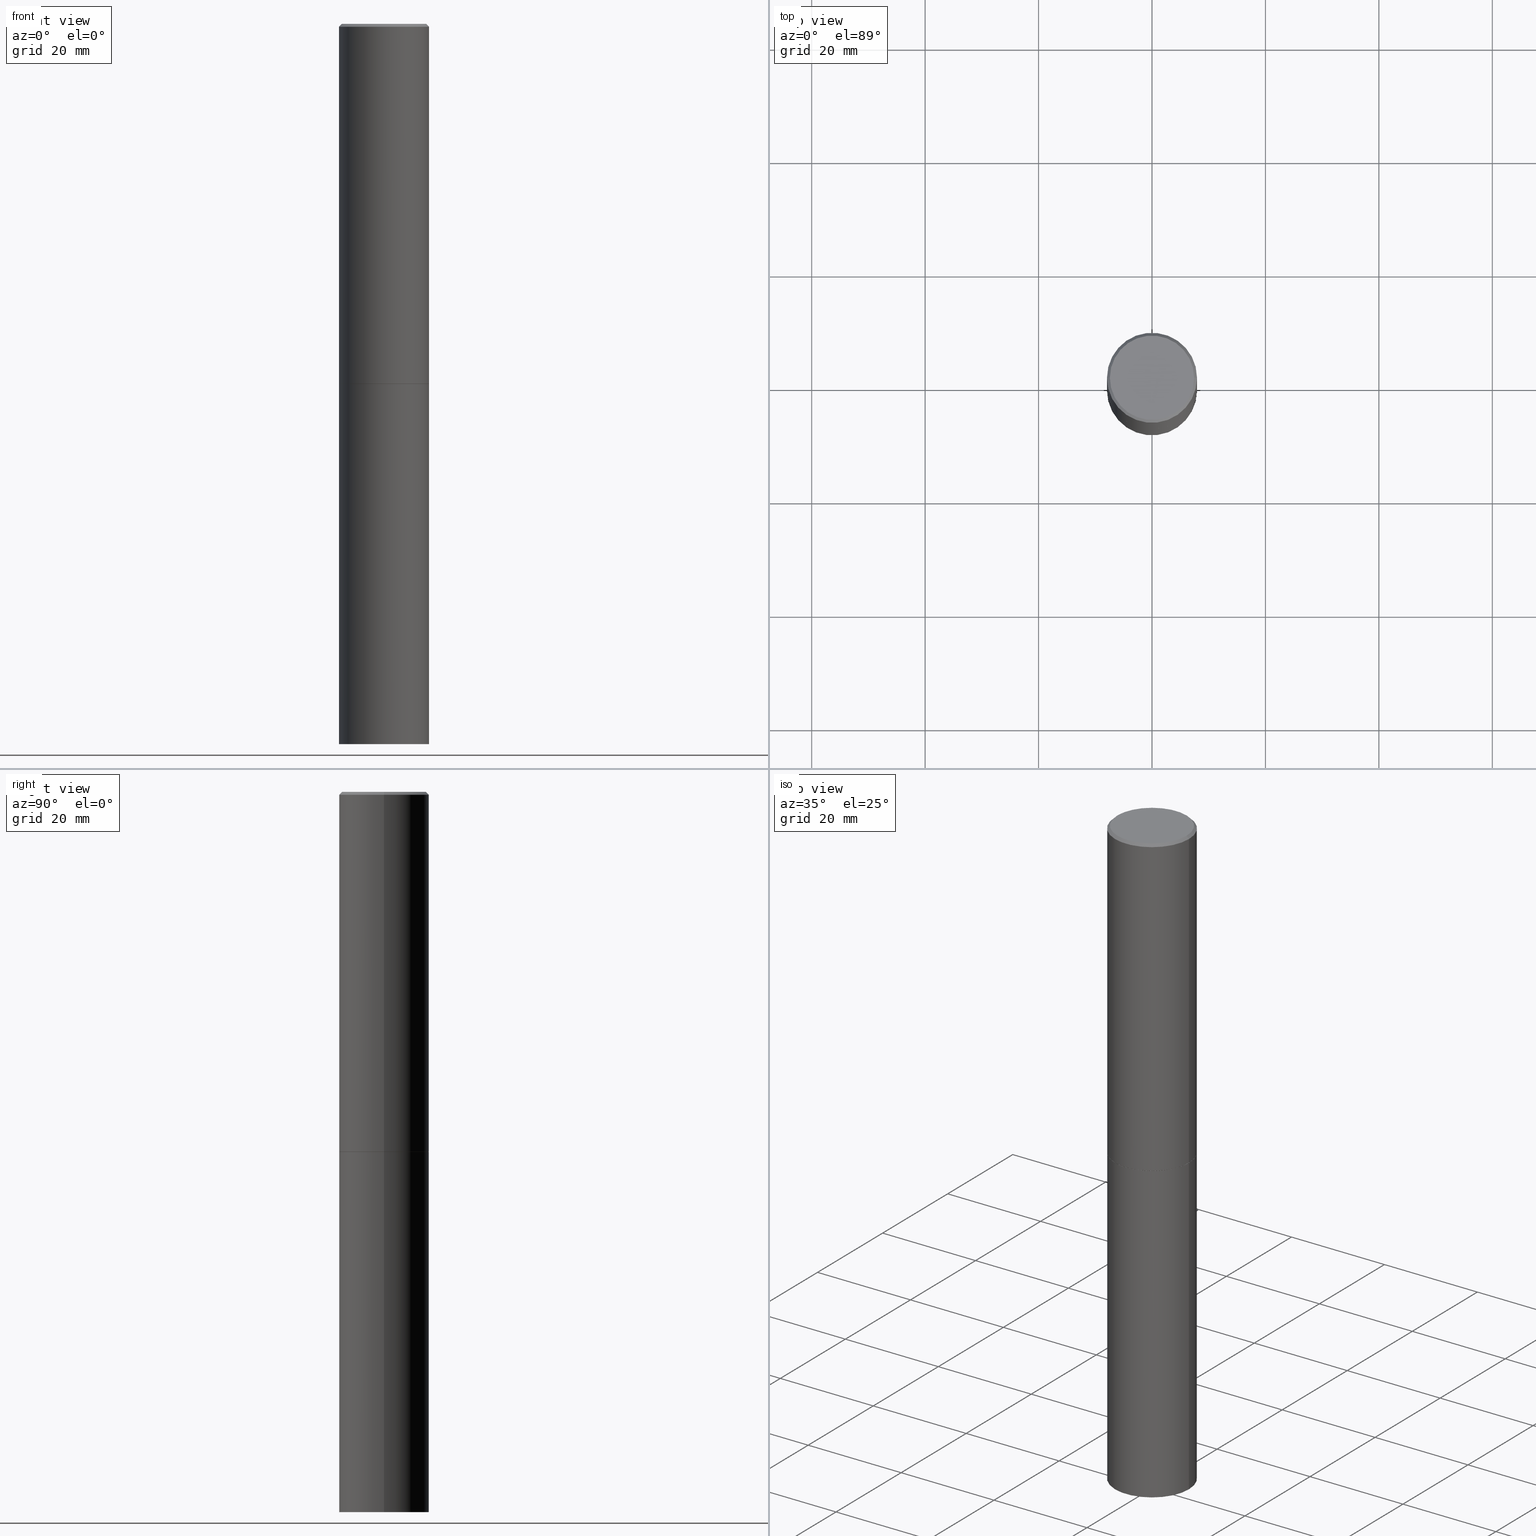
[diagram: canonical four-view strip — front | top / right | iso, engineering-drawing reading convention]
A machine part, canonical four-view strip (front | top / right | iso — engineering-drawing reading convention). The complete STEP part file that produces these views, byte-faithful:
ISO-10303-21;
HEADER;
FILE_DESCRIPTION (( 'STEP AP203' ),
    '1' );
FILE_NAME ('34745.STEP',
    '2024-02-27T17:29:21',
    ( '' ),
    ( '' ),
    'SwSTEP 2.0',
    'SolidWorks 2023',
    '' );
FILE_SCHEMA (( 'CONFIG_CONTROL_DESIGN' ));
ENDSEC;

DATA;
#1 = CYLINDRICAL_SURFACE ( 'NONE', #303, 0.3124999999999998890 ) ;
#2 = ORIENTED_EDGE ( 'NONE', *, *, #57, .T. ) ;
#3 = VECTOR ( 'NONE', #358, 39.37007874015748143 ) ;
#4 = PERSON_AND_ORGANIZATION ( #226, #138 ) ;
#5 = ORIENTED_EDGE ( 'NONE', *, *, #34, .F. ) ;
#6 = CC_DESIGN_PERSON_AND_ORGANIZATION_ASSIGNMENT ( #152, #31, ( #104 ) ) ;
#7 = ORIENTED_EDGE ( 'NONE', *, *, #294, .F. ) ;
#8 = ORIENTED_EDGE ( 'NONE', *, *, #356, .T. ) ;
#9 = CLOSED_SHELL ( 'NONE', ( #45, #328, #183, #143, #84, #77, #67, #284 ) ) ;
#10 = FACE_OUTER_BOUND ( 'NONE', #261, .T. ) ;
#11 = PRODUCT_DEFINITION_SHAPE ( 'NONE', 'NONE',  #258 ) ;
#12 = CALENDAR_DATE ( 2024, 27, 2 ) ;
#13 = CARTESIAN_POINT ( 'NONE',  ( -0.3114999999999999991, -6.510064270866932046E-15, -2.500000000000000000 ) ) ;
#14 = CARTESIAN_POINT ( 'NONE',  ( 0.3125000000000000000, -1.090738770254598186E-14, -2.499000000000000998 ) ) ;
#15 = ADVANCED_FACE ( 'NONE', ( #10 ), #288, .T. ) ;
#16 = CONICAL_SURFACE ( 'NONE', #180, 0.3124999999999997224, 0.7853981633974468357 ) ;
#17 = AXIS2_PLACEMENT_3D ( 'NONE', #307, #142, #252 ) ;
#18 = DIRECTION ( 'NONE',  ( -2.445468806185136597E-29, 3.491481338843145583E-15, 1.000000000000000000 ) ) ;
#19 = DIRECTION ( 'NONE',  ( 1.000000000000000000, -6.982962677686266711E-15, 4.876176775795936353E-29 ) ) ;
#20 = DIRECTION ( 'NONE',  ( 2.445468806185136597E-29, -3.491481338843145583E-15, -1.000000000000000000 ) ) ;
#21 = CARTESIAN_POINT ( 'NONE',  ( 4.890937612370284544E-31, -6.982962677686307633E-17, -0.02000000000000004552 ) ) ;
#22 = DIRECTION ( 'NONE',  ( 0.7071067811868130271, -2.468850131085038979E-15, 0.7071067811862817853 ) ) ;
#23 = DIRECTION ( 'NONE',  ( 2.438088387897960049E-29, -3.491481338843145188E-15, -1.000000000000000000 ) ) ;
#24 = DIRECTION ( 'NONE',  ( -1.000000000000000000, 6.982962677686266711E-15, 0.000000000000000000 ) ) ;
#25 = COORDINATED_UNIVERSAL_TIME_OFFSET ( 5, 0, .BEHIND. ) ;
#26 = FACE_OUTER_BOUND ( 'NONE', #68, .T. ) ;
#27 = ORIENTED_EDGE ( 'NONE', *, *, #125, .F. ) ;
#28 = ORIENTED_EDGE ( 'NONE', *, *, #338, .T. ) ;
#29 = AXIS2_PLACEMENT_3D ( 'NONE', #202, #172, #313 ) ;
#30 = CC_DESIGN_APPROVAL ( #193, ( #258 ) ) ;
#31 = PERSON_AND_ORGANIZATION_ROLE ( 'design_supplier' ) ;
#32 =( NAMED_UNIT ( * ) PLANE_ANGLE_UNIT ( ) SI_UNIT ( $, .RADIAN. ) );
#33 = EDGE_LOOP ( 'NONE', ( #95, #265 ) ) ;
#34 = EDGE_CURVE ( 'NONE', #295, #271, #305, .T. ) ;
#35 = ORIENTED_EDGE ( 'NONE', *, *, #248, .F. ) ;
#36 = APPROVAL ( #210, 'UNSPECIFIED' ) ;
#37 = ORIENTED_EDGE ( 'NONE', *, *, #125, .T. ) ;
#38 = FACE_OUTER_BOUND ( 'NONE', #51, .T. ) ;
#39 = EDGE_CURVE ( 'NONE', #197, #150, #91, .T. ) ;
#40 = PLANE ( 'NONE',  #170 ) ;
#41 = PLANE ( 'NONE',  #325 ) ;
#42 = CLOSED_SHELL ( 'NONE', ( #15, #317, #118, #112 ) ) ;
#43 = DIRECTION ( 'NONE',  ( 1.000000000000000000, -6.982962677686265133E-15, 0.000000000000000000 ) ) ;
#44 = MANIFOLD_SOLID_BREP ( 'Body-Move/Copy2[2]', #9 ) ;
#45 = ADVANCED_FACE ( 'NONE', ( #38 ), #115, .T. ) ;
#46 = FACE_OUTER_BOUND ( 'NONE', #206, .T. ) ;
#47 = ADVANCED_BREP_SHAPE_REPRESENTATION ( '34745', ( #168, #44, #234 ), #158 ) ;
#48 = DATE_AND_TIME ( #189, #80 ) ;
#49 = CARTESIAN_POINT ( 'NONE',  ( 4.890937612370284544E-31, -6.982962677686307633E-17, -0.02000000000000004552 ) ) ;
#50 = CARTESIAN_POINT ( 'NONE',  ( -0.3125000000000000000, -1.087260897141148433E-14, -2.500000000000000000 ) ) ;
#51 = EDGE_LOOP ( 'NONE', ( #235, #2, #350, #7 ) ) ;
#52 = DIRECTION ( 'NONE',  ( -1.000000000000000000, 6.982962677686265922E-15, -4.876176775795935793E-29 ) ) ;
#53 = EDGE_CURVE ( 'NONE', #240, #271, #103, .T. ) ;
#54 = CALENDAR_DATE ( 2024, 27, 2 ) ;
#55 = CARTESIAN_POINT ( 'NONE',  ( -0.3125000000000000000, -2.177074697022629142E-15, -2.499000000000000998 ) ) ;
#56 = CARTESIAN_POINT ( 'NONE',  ( -0.2924999999999997602, 2.077431396611662216E-15, 4.268512490086005323E-18 ) ) ;
#57 = EDGE_CURVE ( 'NONE', #61, #211, #162, .T. ) ;
#58 =( NAMED_UNIT ( * ) SI_UNIT ( $, .STERADIAN. ) SOLID_ANGLE_UNIT ( ) );
#59 = ORIENTED_EDGE ( 'NONE', *, *, #89, .T. ) ;
#60 = PRODUCT_RELATED_PRODUCT_CATEGORY ( 'detail', '', ( #153 ) ) ;
#61 = VERTEX_POINT ( 'NONE', #13 ) ;
#62 = MECHANICAL_CONTEXT ( 'NONE', #161, 'mechanical' ) ;
#63 = PERSON_AND_ORGANIZATION_ROLE ( 'classification_officer' ) ;
#64 = ORIENTED_EDGE ( 'NONE', *, *, #57, .F. ) ;
#65 = CIRCLE ( 'NONE', #17, 0.3125000000000000000 ) ;
#66 = ORIENTED_EDGE ( 'NONE', *, *, #216, .F. ) ;
#67 = ADVANCED_FACE ( 'NONE', ( #46 ), #41, .F. ) ;
#68 = EDGE_LOOP ( 'NONE', ( #99, #209 ) ) ;
#69 = CARTESIAN_POINT ( 'NONE',  ( 6.111226546656659252E-29, -8.725211865769023513E-15, -2.499000000000000998 ) ) ;
#70 = EDGE_CURVE ( 'NONE', #128, #211, #275, .T. ) ;
#71 = VECTOR ( 'NONE', #272, 39.37007874015748854 ) ;
#72 = APPROVAL_PERSON_ORGANIZATION ( #296, #36, #213 ) ;
#73 = DIRECTION ( 'NONE',  ( -2.445468806185136877E-29, 3.491481338843145188E-15, 1.000000000000000000 ) ) ;
#74 = DIRECTION ( 'NONE',  ( 1.000000000000000000, -6.982962677686269077E-15, 0.000000000000000000 ) ) ;
#75 = COORDINATED_UNIVERSAL_TIME_OFFSET ( 5, 0, .BEHIND. ) ;
#76 = DIRECTION ( 'NONE',  ( -2.438088387897960049E-29, 3.491481338843145188E-15, 1.000000000000000000 ) ) ;
#77 = ADVANCED_FACE ( 'NONE', ( #81 ), #221, .T. ) ;
#78 = AXIS2_PLACEMENT_3D ( 'NONE', #340, #308, #201 ) ;
#79 = DESIGN_CONTEXT ( 'detailed design', #304, 'design' ) ;
#80 = LOCAL_TIME ( 12, 29, 21.00000000000000000, #75 ) ;
#81 = FACE_OUTER_BOUND ( 'NONE', #237, .T. ) ;
#82 = DIRECTION ( 'NONE',  ( 1.000000000000000000, -6.982962677686266711E-15, 4.876176775795935232E-29 ) ) ;
#83 = DIRECTION ( 'NONE',  ( 1.000000000000000000, -6.982962677686265133E-15, 0.000000000000000000 ) ) ;
#84 = ADVANCED_FACE ( 'NONE', ( #192 ), #134, .T. ) ;
#85 = DIRECTION ( 'NONE',  ( -2.445468806185136597E-29, 3.491481338843145583E-15, 1.000000000000000000 ) ) ;
#86 = AXIS2_PLACEMENT_3D ( 'NONE', #69, #18, #43 ) ;
#87 = APPROVAL_ROLE ( '' ) ;
#88 = DIRECTION ( 'NONE',  ( -2.445468806185136877E-29, 3.491481338843145188E-15, 1.000000000000000000 ) ) ;
#89 = EDGE_CURVE ( 'NONE', #295, #264, #337, .T. ) ;
#90 = APPROVAL_DATE_TIME ( #341, #268 ) ;
#91 = CIRCLE ( 'NONE', #233, 0.3124999999999997224 ) ;
#92 = CC_DESIGN_PERSON_AND_ORGANIZATION_ASSIGNMENT ( #4, #311, ( #258 ) ) ;
#93 =( CONVERSION_BASED_UNIT ( 'INCH', #348 ) LENGTH_UNIT ( ) NAMED_UNIT ( #324 ) );
#94 = ORIENTED_EDGE ( 'NONE', *, *, #253, .F. ) ;
#95 = ORIENTED_EDGE ( 'NONE', *, *, #216, .T. ) ;
#96 = DATE_TIME_ROLE ( 'classification_date' ) ;
#97 = ORIENTED_EDGE ( 'NONE', *, *, #70, .T. ) ;
#98 = LOCAL_TIME ( 12, 29, 21.00000000000000000, #179 ) ;
#99 = ORIENTED_EDGE ( 'NONE', *, *, #349, .F. ) ;
#100 = ORIENTED_EDGE ( 'NONE', *, *, #344, .F. ) ;
#101 = CALENDAR_DATE ( 2024, 27, 2 ) ;
#102 = LINE ( 'NONE', #327, #364 ) ;
#103 = CIRCLE ( 'NONE', #342, 0.3125000000000000000 ) ;
#104 = PRODUCT_DEFINITION_FORMATION_WITH_SPECIFIED_SOURCE ( 'ANY', '', #153, .NOT_KNOWN. ) ;
#105 = FACE_OUTER_BOUND ( 'NONE', #293, .T. ) ;
#106 = EDGE_CURVE ( 'NONE', #264, #240, #102, .T. ) ;
#107 = DIRECTION ( 'NONE',  ( -2.445468806185136597E-29, 3.491481338843145583E-15, 1.000000000000000000 ) ) ;
#108 = CARTESIAN_POINT ( 'NONE',  ( 4.890937612370284544E-31, -6.982962677686307633E-17, -0.02000000000000004552 ) ) ;
#109 = AXIS2_PLACEMENT_3D ( 'NONE', #190, #186, #243 ) ;
#110 = LINE ( 'NONE', #132, #3 ) ;
#111 = CARTESIAN_POINT ( 'NONE',  ( 6.111226546656659252E-29, -8.725211865769023513E-15, -2.499000000000000998 ) ) ;
#112 = ADVANCED_FACE ( 'NONE', ( #300 ), #302, .T. ) ;
#113 = PLANE ( 'NONE',  #29 ) ;
#114 = APPLICATION_PROTOCOL_DEFINITION ( 'international standard', 'config_control_design', 1994, #304 ) ;
#115 = CONICAL_SURFACE ( 'NONE', #298, 0.3114999999999999991, 0.7853981633978239785 ) ;
#116 = CARTESIAN_POINT ( 'NONE',  ( -0.3124999999999997224, 2.112346210000093471E-15, -0.02000000000000004552 ) ) ;
#117 = APPROVAL_PERSON_ORGANIZATION ( #199, #268, #87 ) ;
#118 = ADVANCED_FACE ( 'NONE', ( #137 ), #40, .F. ) ;
#119 = APPROVAL_STATUS ( 'not_yet_approved' ) ;
#120 = DIRECTION ( 'NONE',  ( 0.7071067811865464625, -7.319954787623252890E-15, -0.7071067811865485719 ) ) ;
#121 = PERSON_AND_ORGANIZATION ( #226, #138 ) ;
#122 = ORIENTED_EDGE ( 'NONE', *, *, #135, .F. ) ;
#123 = AXIS2_PLACEMENT_3D ( 'NONE', #159, #353, #326 ) ;
#124 = CARTESIAN_POINT ( 'NONE',  ( 0.000000000000000000, 0.000000000000000000, 0.000000000000000000 ) ) ;
#125 = EDGE_CURVE ( 'NONE', #211, #197, #136, .T. ) ;
#126 = ORIENTED_EDGE ( 'NONE', *, *, #53, .F. ) ;
#127 = CC_DESIGN_DATE_AND_TIME_ASSIGNMENT ( #174, #236, ( #258 ) ) ;
#128 = VERTEX_POINT ( 'NONE', #14 ) ;
#129 = AXIS2_PLACEMENT_3D ( 'NONE', #124, #330, #19 ) ;
#130 = ORIENTED_EDGE ( 'NONE', *, *, #349, .T. ) ;
#131 = CARTESIAN_POINT ( 'NONE',  ( 6.113672015462842613E-29, -8.728703347107864943E-15, -2.500000000000000000 ) ) ;
#132 = CARTESIAN_POINT ( 'NONE',  ( -0.3124999999999997224, 2.112346210000093471E-15, -0.02000000000000004552 ) ) ;
#133 = AXIS2_PLACEMENT_3D ( 'NONE', #254, #85, #196 ) ;
#134 = CYLINDRICAL_SURFACE ( 'NONE', #331, 0.3124999999999998890 ) ;
#135 = EDGE_CURVE ( 'NONE', #320, #197, #110, .T. ) ;
#136 = LINE ( 'NONE', #249, #151 ) ;
#137 = FACE_OUTER_BOUND ( 'NONE', #335, .T. ) ;
#138 = ORGANIZATION ( 'UNSPECIFIED', 'UNSPECIFIED', '' ) ;
#139 = DIRECTION ( 'NONE',  ( 1.000000000000000000, -6.982962677686266711E-15, 0.000000000000000000 ) ) ;
#140 = CARTESIAN_POINT ( 'NONE',  ( -1.043851414335219820E-46, 1.490343170380447200E-32, 4.268512490100411279E-18 ) ) ;
#141 = CC_DESIGN_DATE_AND_TIME_ASSIGNMENT ( #290, #96, ( #164 ) ) ;
#142 = DIRECTION ( 'NONE',  ( -2.445468806185136597E-29, 3.491481338843145583E-15, 1.000000000000000000 ) ) ;
#143 = ADVANCED_FACE ( 'NONE', ( #105 ), #16, .T. ) ;
#144 = AXIS2_PLACEMENT_3D ( 'NONE', #111, #310, #83 ) ;
#145 = CARTESIAN_POINT ( 'NONE',  ( 0.3124999999999997224, -2.213735251080464939E-15, -0.02000000000000004552 ) ) ;
#146 = COORDINATED_UNIVERSAL_TIME_OFFSET ( 5, 0, .BEHIND. ) ;
#147 = CARTESIAN_POINT ( 'NONE',  ( 0.3125000000000000000, -1.963958253099268981E-14, -5.000000000000000000 ) ) ;
#148 = ORIENTED_EDGE ( 'NONE', *, *, #106, .T. ) ;
#149 = DIRECTION ( 'NONE',  ( 1.000000000000000000, 0.000000000000000000, 0.000000000000000000 ) ) ;
#150 = VERTEX_POINT ( 'NONE', #355 ) ;
#151 = VECTOR ( 'NONE', #299, 39.37007874015748143 ) ;
#152 = PERSON_AND_ORGANIZATION ( #226, #138 ) ;
#153 = PRODUCT ( '34745', '34745', '', ( #62 ) ) ;
#154 = ORIENTED_EDGE ( 'NONE', *, *, #356, .F. ) ;
#155 = ORIENTED_EDGE ( 'NONE', *, *, #365, .T. ) ;
#156 = EDGE_CURVE ( 'NONE', #238, #61, #285, .T. ) ;
#157 = ORIENTED_EDGE ( 'NONE', *, *, #294, .T. ) ;
#158 =( GEOMETRIC_REPRESENTATION_CONTEXT ( 3 ) GLOBAL_UNCERTAINTY_ASSIGNED_CONTEXT ( ( #171 ) ) GLOBAL_UNIT_ASSIGNED_CONTEXT ( ( #93, #32, #58 ) ) REPRESENTATION_CONTEXT ( 'NONE', 'WORKASPACE' ) );
#159 = CARTESIAN_POINT ( 'NONE',  ( 1.222734403092568523E-28, -1.745740669421572989E-14, -5.000000000000000000 ) ) ;
#160 = CARTESIAN_POINT ( 'NONE',  ( 6.113672015462842613E-29, -8.728703347107864943E-15, -2.500000000000000000 ) ) ;
#161 = APPLICATION_CONTEXT ( 'configuration controlled 3d designs of mechanical parts and assemblies' ) ;
#162 = LINE ( 'NONE', #301, #71 ) ;
#163 = AXIS2_PLACEMENT_3D ( 'NONE', #362, #312, #336 ) ;
#164 = SECURITY_CLASSIFICATION ( '', '', #318 ) ;
#165 = CARTESIAN_POINT ( 'NONE',  ( 2.182175836777019089E-15, 0.3124999999999912847, -2.500000000000001332 ) ) ;
#166 = DIRECTION ( 'NONE',  ( 1.000000000000000000, -6.982962677686266711E-15, 4.876176775795936353E-29 ) ) ;
#167 = APPROVAL_DATE_TIME ( #48, #193 ) ;
#168 = MANIFOLD_SOLID_BREP ( 'Body-Move/Copy2[1]', #42 ) ;
#169 = CARTESIAN_POINT ( 'NONE',  ( 2.042516583223230962E-15, 0.2924999999999997602, -1.019124035366569015E-15 ) ) ;
#170 = AXIS2_PLACEMENT_3D ( 'NONE', #165, #277, #273 ) ;
#171 = UNCERTAINTY_MEASURE_WITH_UNIT (LENGTH_MEASURE( 1.000000000000000082E-05 ), #93, 'distance_accuracy_value', 'NONE');
#172 = DIRECTION ( 'NONE',  ( 2.438088387897960049E-29, -3.491481338843145188E-15, -1.000000000000000000 ) ) ;
#173 = CARTESIAN_POINT ( 'NONE',  ( -0.3125000000000000000, -1.087260897141148433E-14, -5.000000000000000000 ) ) ;
#174 = DATE_AND_TIME ( #54, #246 ) ;
#175 = LINE ( 'NONE', #225, #215 ) ;
#176 = FACE_OUTER_BOUND ( 'NONE', #241, .T. ) ;
#177 = ORIENTED_EDGE ( 'NONE', *, *, #253, .T. ) ;
#178 = ORIENTED_EDGE ( 'NONE', *, *, #338, .F. ) ;
#179 = COORDINATED_UNIVERSAL_TIME_OFFSET ( 5, 0, .BEHIND. ) ;
#180 = AXIS2_PLACEMENT_3D ( 'NONE', #108, #20, #244 ) ;
#181 = ORIENTED_EDGE ( 'NONE', *, *, #156, .F. ) ;
#182 = EDGE_LOOP ( 'NONE', ( #5, #59, #148, #154 ) ) ;
#183 = ADVANCED_FACE ( 'NONE', ( #176 ), #239, .T. ) ;
#184 = ORIENTED_EDGE ( 'NONE', *, *, #248, .T. ) ;
#185 = PERSON_AND_ORGANIZATION ( #226, #138 ) ;
#186 = DIRECTION ( 'NONE',  ( -2.445468806185136597E-29, 3.491481338843145583E-15, 1.000000000000000000 ) ) ;
#187 = CARTESIAN_POINT ( 'NONE',  ( 4.890937612370284544E-31, -6.982962677686307633E-17, -0.02000000000000004552 ) ) ;
#188 = DIRECTION ( 'NONE',  ( -2.445468806185136877E-29, 3.491481338843145188E-15, 1.000000000000000000 ) ) ;
#189 = CALENDAR_DATE ( 2024, 27, 2 ) ;
#190 = CARTESIAN_POINT ( 'NONE',  ( 6.113672015462842613E-29, -8.728703347107864943E-15, -2.500000000000000000 ) ) ;
#191 = AXIS2_PLACEMENT_3D ( 'NONE', #140, #195, #227 ) ;
#192 = FACE_OUTER_BOUND ( 'NONE', #351, .T. ) ;
#193 = APPROVAL ( #218, 'UNSPECIFIED' ) ;
#194 = APPROVAL_ROLE ( '' ) ;
#195 = DIRECTION ( 'NONE',  ( -2.445468806185136597E-29, 3.491481338843145583E-15, 1.000000000000000000 ) ) ;
#196 = DIRECTION ( 'NONE',  ( 1.000000000000000000, -6.982962677686269077E-15, 0.000000000000000000 ) ) ;
#197 = VERTEX_POINT ( 'NONE', #116 ) ;
#198 = VECTOR ( 'NONE', #22, 39.37007874015748854 ) ;
#199 = PERSON_AND_ORGANIZATION ( #226, #138 ) ;
#200 = LINE ( 'NONE', #286, #198 ) ;
#201 = DIRECTION ( 'NONE',  ( 1.000000000000000000, -6.982962677686269077E-15, 0.000000000000000000 ) ) ;
#202 = CARTESIAN_POINT ( 'NONE',  ( 2.182175836777080620E-15, 0.3124999999999825140, -5.000000000000000888 ) ) ;
#203 = CC_DESIGN_PERSON_AND_ORGANIZATION_ASSIGNMENT ( #185, #63, ( #164 ) ) ;
#204 = PERSON_AND_ORGANIZATION ( #226, #138 ) ;
#205 = ORIENTED_EDGE ( 'NONE', *, *, #39, .F. ) ;
#206 = EDGE_LOOP ( 'NONE', ( #181, #35 ) ) ;
#207 = COORDINATED_UNIVERSAL_TIME_OFFSET ( 5, 0, .BEHIND. ) ;
#208 = EDGE_CURVE ( 'NONE', #128, #150, #175, .T. ) ;
#209 = ORIENTED_EDGE ( 'NONE', *, *, #89, .F. ) ;
#210 = APPROVAL_STATUS ( 'not_yet_approved' ) ;
#211 = VERTEX_POINT ( 'NONE', #55 ) ;
#212 = ORIENTED_EDGE ( 'NONE', *, *, #39, .T. ) ;
#213 = APPROVAL_ROLE ( '' ) ;
#214 = DIRECTION ( 'NONE',  ( -2.445468806185136597E-29, 3.491481338843145583E-15, 1.000000000000000000 ) ) ;
#215 = VECTOR ( 'NONE', #88, 39.37007874015748143 ) ;
#216 = EDGE_CURVE ( 'NONE', #320, #343, #354, .T. ) ;
#217 = DIRECTION ( 'NONE',  ( -2.445468806185136597E-29, 3.491481338843145583E-15, 1.000000000000000000 ) ) ;
#218 = APPROVAL_STATUS ( 'not_yet_approved' ) ;
#219 = CARTESIAN_POINT ( 'NONE',  ( 0.000000000000000000, 0.000000000000000000, 0.000000000000000000 ) ) ;
#220 = DIRECTION ( 'NONE',  ( -2.445468806185136597E-29, 3.491481338843145583E-15, 1.000000000000000000 ) ) ;
#221 = CONICAL_SURFACE ( 'NONE', #109, 0.3114999999999999991, 0.7853981633978239785 ) ;
#222 = CIRCLE ( 'NONE', #276, 0.3124999999999997224 ) ;
#223 = CARTESIAN_POINT ( 'NONE',  ( 0.000000000000000000, 0.000000000000000000, 0.000000000000000000 ) ) ;
#224 = CARTESIAN_POINT ( 'NONE',  ( 0.000000000000000000, 0.000000000000000000, 0.000000000000000000 ) ) ;
#225 = CARTESIAN_POINT ( 'NONE',  ( 0.3124999999999998890, -2.182175836776957558E-15, 1.523805242436229235E-29 ) ) ;
#226 = PERSON ( 'UNSPECIFIED', 'UNSPECIFIED', 'UNSPECIFIED', ('UNSPECIFIED'), ('UNSPECIFIED'), ('UNSPECIFIED') ) ;
#227 = DIRECTION ( 'NONE',  ( 1.000000000000000000, -6.982962677686266711E-15, 4.876067333457693400E-29 ) ) ;
#228 = AXIS2_PLACEMENT_3D ( 'NONE', #169, #23, #52 ) ;
#229 = APPROVAL_PERSON_ORGANIZATION ( #250, #193, #194 ) ;
#230 = LINE ( 'NONE', #145, #263 ) ;
#231 = PLANE ( 'NONE',  #228 ) ;
#232 = PERSON_AND_ORGANIZATION_ROLE ( 'design_owner' ) ;
#233 = AXIS2_PLACEMENT_3D ( 'NONE', #187, #220, #251 ) ;
#234 = AXIS2_PLACEMENT_3D ( 'NONE', #224, #306, #149 ) ;
#235 = ORIENTED_EDGE ( 'NONE', *, *, #156, .T. ) ;
#236 = DATE_TIME_ROLE ( 'creation_date' ) ;
#237 = EDGE_LOOP ( 'NONE', ( #64, #184, #157, #178 ) ) ;
#238 = VERTEX_POINT ( 'NONE', #257 ) ;
#239 = CONICAL_SURFACE ( 'NONE', #270, 0.3124999999999997224, 0.7853981633974468357 ) ;
#240 = VERTEX_POINT ( 'NONE', #283 ) ;
#241 = EDGE_LOOP ( 'NONE', ( #100, #177, #155, #122 ) ) ;
#242 = DATE_AND_TIME ( #12, #332 ) ;
#243 = DIRECTION ( 'NONE',  ( 1.000000000000000000, -6.982962677686269077E-15, 0.000000000000000000 ) ) ;
#244 = DIRECTION ( 'NONE',  ( -1.000000000000000000, 6.982962677686266711E-15, 0.000000000000000000 ) ) ;
#245 = CC_DESIGN_PERSON_AND_ORGANIZATION_ASSIGNMENT ( #204, #269, ( #104 ) ) ;
#246 = LOCAL_TIME ( 12, 29, 21.00000000000000000, #25 ) ;
#247 = CARTESIAN_POINT ( 'NONE',  ( 0.000000000000000000, 0.000000000000000000, 0.000000000000000000 ) ) ;
#248 = EDGE_CURVE ( 'NONE', #61, #238, #255, .T. ) ;
#249 = CARTESIAN_POINT ( 'NONE',  ( -0.3124999999999998890, 2.220446049250312292E-15, -1.537167215704657391E-29 ) ) ;
#250 = PERSON_AND_ORGANIZATION ( #226, #138 ) ;
#251 = DIRECTION ( 'NONE',  ( 1.000000000000000000, -6.982962677686266711E-15, 0.000000000000000000 ) ) ;
#252 = DIRECTION ( 'NONE',  ( 1.000000000000000000, -6.982962677686269077E-15, 0.000000000000000000 ) ) ;
#253 = EDGE_CURVE ( 'NONE', #343, #150, #230, .T. ) ;
#254 = CARTESIAN_POINT ( 'NONE',  ( 6.113672015462842613E-29, -8.728703347107864943E-15, -2.500000000000000000 ) ) ;
#255 = CIRCLE ( 'NONE', #133, 0.3114999999999999991 ) ;
#256 = LOCAL_TIME ( 12, 29, 21.00000000000000000, #146 ) ;
#257 = CARTESIAN_POINT ( 'NONE',  ( 0.3114999999999999991, -1.090389622120713728E-14, -2.500000000000000000 ) ) ;
#258 = PRODUCT_DEFINITION ( 'UNKNOWN', '', #104, #79 ) ;
#259 = FACE_OUTER_BOUND ( 'NONE', #267, .T. ) ;
#260 = CALENDAR_DATE ( 2024, 27, 2 ) ;
#261 = EDGE_LOOP ( 'NONE', ( #130, #316, #126, #346 ) ) ;
#262 = APPLICATION_PROTOCOL_DEFINITION ( 'international standard', 'config_control_design', 1994, #161 ) ;
#263 = VECTOR ( 'NONE', #120, 39.37007874015748143 ) ;
#264 = VERTEX_POINT ( 'NONE', #147 ) ;
#265 = ORIENTED_EDGE ( 'NONE', *, *, #344, .T. ) ;
#266 = APPROVAL_DATE_TIME ( #242, #36 ) ;
#267 = EDGE_LOOP ( 'NONE', ( #97, #37, #287, #321 ) ) ;
#268 = APPROVAL ( #119, 'UNSPECIFIED' ) ;
#269 = PERSON_AND_ORGANIZATION_ROLE ( 'creator' ) ;
#270 = AXIS2_PLACEMENT_3D ( 'NONE', #49, #281, #24 ) ;
#271 = VERTEX_POINT ( 'NONE', #50 ) ;
#272 = DIRECTION ( 'NONE',  ( -0.7071067811868130271, 7.493145998871311837E-15, 0.7071067811862817853 ) ) ;
#273 = DIRECTION ( 'NONE',  ( -1.000000000000000000, 6.982962677686265922E-15, -4.876176775795935793E-29 ) ) ;
#274 = DIRECTION ( 'NONE',  ( 1.000000000000000000, -6.982962677686265922E-15, 4.876176775795935793E-29 ) ) ;
#275 = CIRCLE ( 'NONE', #86, 0.3125000000000000000 ) ;
#276 = AXIS2_PLACEMENT_3D ( 'NONE', #21, #339, #139 ) ;
#277 = DIRECTION ( 'NONE',  ( 2.438088387897960049E-29, -3.491481338843145188E-15, -1.000000000000000000 ) ) ;
#278 = DIRECTION ( 'NONE',  ( 1.000000000000000000, -6.982962677686265133E-15, 0.000000000000000000 ) ) ;
#279 = CARTESIAN_POINT ( 'NONE',  ( 6.113672015462842613E-29, -8.728703347107864943E-15, -2.500000000000000000 ) ) ;
#280 = CC_DESIGN_APPROVAL ( #36, ( #164 ) ) ;
#281 = DIRECTION ( 'NONE',  ( 2.445468806185136597E-29, -3.491481338843145583E-15, -1.000000000000000000 ) ) ;
#282 = CARTESIAN_POINT ( 'NONE',  ( 0.2924999999999997602, -2.110215457714317959E-15, 4.268512490114932791E-18 ) ) ;
#283 = CARTESIAN_POINT ( 'NONE',  ( 0.3125000000000000000, -1.091087918388482329E-14, -2.500000000000000000 ) ) ;
#284 = ADVANCED_FACE ( 'NONE', ( #366 ), #231, .F. ) ;
#285 = CIRCLE ( 'NONE', #78, 0.3114999999999999991 ) ;
#286 = CARTESIAN_POINT ( 'NONE',  ( 0.3114999999999999991, -1.090389622120713728E-14, -2.500000000000000000 ) ) ;
#287 = ORIENTED_EDGE ( 'NONE', *, *, #365, .F. ) ;
#288 = CYLINDRICAL_SURFACE ( 'NONE', #129, 0.3125000000000000000 ) ;
#289 = CIRCLE ( 'NONE', #144, 0.3125000000000000000 ) ;
#290 = DATE_AND_TIME ( #101, #98 ) ;
#291 = AXIS2_PLACEMENT_3D ( 'NONE', #279, #334, #363 ) ;
#292 = CIRCLE ( 'NONE', #291, 0.3125000000000000000 ) ;
#293 = EDGE_LOOP ( 'NONE', ( #94, #66, #319, #212 ) ) ;
#294 = EDGE_CURVE ( 'NONE', #238, #128, #200, .T. ) ;
#295 = VERTEX_POINT ( 'NONE', #173 ) ;
#296 = PERSON_AND_ORGANIZATION ( #226, #138 ) ;
#297 = ORIENTED_EDGE ( 'NONE', *, *, #53, .T. ) ;
#298 = AXIS2_PLACEMENT_3D ( 'NONE', #323, #214, #74 ) ;
#299 = DIRECTION ( 'NONE',  ( -2.445468806185136877E-29, 3.491481338843145188E-15, 1.000000000000000000 ) ) ;
#300 = FACE_OUTER_BOUND ( 'NONE', #182, .T. ) ;
#301 = CARTESIAN_POINT ( 'NONE',  ( -0.3114999999999999991, -6.515362725215152081E-15, -2.500000000000000000 ) ) ;
#302 = CYLINDRICAL_SURFACE ( 'NONE', #314, 0.3125000000000000000 ) ;
#303 = AXIS2_PLACEMENT_3D ( 'NONE', #223, #333, #82 ) ;
#304 = APPLICATION_CONTEXT ( 'configuration controlled 3d designs of mechanical parts and assemblies' ) ;
#305 = LINE ( 'NONE', #329, #360 ) ;
#306 = DIRECTION ( 'NONE',  ( 0.000000000000000000, 0.000000000000000000, 1.000000000000000000 ) ) ;
#307 = CARTESIAN_POINT ( 'NONE',  ( 1.222734403092568523E-28, -1.745740669421572989E-14, -5.000000000000000000 ) ) ;
#308 = DIRECTION ( 'NONE',  ( -2.445468806185136597E-29, 3.491481338843145583E-15, 1.000000000000000000 ) ) ;
#309 = CC_DESIGN_SECURITY_CLASSIFICATION ( #164, ( #104 ) ) ;
#310 = DIRECTION ( 'NONE',  ( -2.445468806185136597E-29, 3.491481338843145583E-15, 1.000000000000000000 ) ) ;
#311 = PERSON_AND_ORGANIZATION_ROLE ( 'creator' ) ;
#312 = DIRECTION ( 'NONE',  ( -2.445468806185136597E-29, 3.491481338843145583E-15, 1.000000000000000000 ) ) ;
#313 = DIRECTION ( 'NONE',  ( -1.000000000000000000, 6.982962677686265922E-15, -4.876176775795935793E-29 ) ) ;
#314 = AXIS2_PLACEMENT_3D ( 'NONE', #247, #357, #166 ) ;
#315 = CC_DESIGN_APPROVAL ( #268, ( #104 ) ) ;
#316 = ORIENTED_EDGE ( 'NONE', *, *, #34, .T. ) ;
#317 = ADVANCED_FACE ( 'NONE', ( #26 ), #113, .T. ) ;
#318 = SECURITY_CLASSIFICATION_LEVEL ( 'unclassified' ) ;
#319 = ORIENTED_EDGE ( 'NONE', *, *, #135, .T. ) ;
#320 = VERTEX_POINT ( 'NONE', #56 ) ;
#321 = ORIENTED_EDGE ( 'NONE', *, *, #208, .F. ) ;
#322 = CC_DESIGN_PERSON_AND_ORGANIZATION_ASSIGNMENT ( #121, #232, ( #153 ) ) ;
#323 = CARTESIAN_POINT ( 'NONE',  ( 6.113672015462842613E-29, -8.728703347107864943E-15, -2.500000000000000000 ) ) ;
#324 = DIMENSIONAL_EXPONENTS ( 1.000000000000000000, 0.000000000000000000, 0.000000000000000000, 0.000000000000000000, 0.000000000000000000, 0.000000000000000000, 0.000000000000000000 ) ;
#325 = AXIS2_PLACEMENT_3D ( 'NONE', #131, #76, #274 ) ;
#326 = DIRECTION ( 'NONE',  ( 1.000000000000000000, -6.982962677686269077E-15, 0.000000000000000000 ) ) ;
#327 = CARTESIAN_POINT ( 'NONE',  ( 0.3125000000000000000, -2.182175836776958347E-15, 1.523805242436230075E-29 ) ) ;
#328 = ADVANCED_FACE ( 'NONE', ( #259 ), #1, .T. ) ;
#329 = CARTESIAN_POINT ( 'NONE',  ( -0.3125000000000000000, 2.220446049250313081E-15, -1.537167215704658232E-29 ) ) ;
#330 = DIRECTION ( 'NONE',  ( -2.445468806185136597E-29, 3.491481338843145583E-15, 1.000000000000000000 ) ) ;
#331 = AXIS2_PLACEMENT_3D ( 'NONE', #219, #217, #359 ) ;
#332 = LOCAL_TIME ( 12, 29, 21.00000000000000000, #207 ) ;
#333 = DIRECTION ( 'NONE',  ( -2.445468806185136597E-29, 3.491481338843145583E-15, 1.000000000000000000 ) ) ;
#334 = DIRECTION ( 'NONE',  ( -2.445468806185136597E-29, 3.491481338843145583E-15, 1.000000000000000000 ) ) ;
#335 = EDGE_LOOP ( 'NONE', ( #297, #8 ) ) ;
#336 = DIRECTION ( 'NONE',  ( 1.000000000000000000, -6.982962677686266711E-15, 4.876067333457693400E-29 ) ) ;
#337 = CIRCLE ( 'NONE', #123, 0.3125000000000000000 ) ;
#338 = EDGE_CURVE ( 'NONE', #211, #128, #289, .T. ) ;
#339 = DIRECTION ( 'NONE',  ( -2.445468806185136597E-29, 3.491481338843145583E-15, 1.000000000000000000 ) ) ;
#340 = CARTESIAN_POINT ( 'NONE',  ( 6.113672015462842613E-29, -8.728703347107864943E-15, -2.500000000000000000 ) ) ;
#341 = DATE_AND_TIME ( #260, #256 ) ;
#342 = AXIS2_PLACEMENT_3D ( 'NONE', #160, #107, #278 ) ;
#343 = VERTEX_POINT ( 'NONE', #282 ) ;
#344 = EDGE_CURVE ( 'NONE', #343, #320, #347, .T. ) ;
#345 = ORIENTED_EDGE ( 'NONE', *, *, #208, .T. ) ;
#346 = ORIENTED_EDGE ( 'NONE', *, *, #106, .F. ) ;
#347 = CIRCLE ( 'NONE', #191, 0.2924999999999997602 ) ;
#348 = LENGTH_MEASURE_WITH_UNIT ( LENGTH_MEASURE( 0.02539999999999999897 ), #361 );
#349 = EDGE_CURVE ( 'NONE', #264, #295, #65, .T. ) ;
#350 = ORIENTED_EDGE ( 'NONE', *, *, #70, .F. ) ;
#351 = EDGE_LOOP ( 'NONE', ( #27, #28, #345, #205 ) ) ;
#352 = SHAPE_DEFINITION_REPRESENTATION ( #11, #47 ) ;
#353 = DIRECTION ( 'NONE',  ( -2.445468806185136597E-29, 3.491481338843145583E-15, 1.000000000000000000 ) ) ;
#354 = CIRCLE ( 'NONE', #163, 0.2924999999999997602 ) ;
#355 = CARTESIAN_POINT ( 'NONE',  ( 0.3124999999999997224, -2.213735251080464939E-15, -0.02000000000000004552 ) ) ;
#356 = EDGE_CURVE ( 'NONE', #271, #240, #292, .T. ) ;
#357 = DIRECTION ( 'NONE',  ( -2.445468806185136597E-29, 3.491481338843145583E-15, 1.000000000000000000 ) ) ;
#358 = DIRECTION ( 'NONE',  ( -0.7071067811865464625, 2.468850131082245622E-15, -0.7071067811865485719 ) ) ;
#359 = DIRECTION ( 'NONE',  ( 1.000000000000000000, -6.982962677686266711E-15, 4.876176775795935232E-29 ) ) ;
#360 = VECTOR ( 'NONE', #188, 39.37007874015748143 ) ;
#361 =( LENGTH_UNIT ( ) NAMED_UNIT ( * ) SI_UNIT ( $, .METRE. ) );
#362 = CARTESIAN_POINT ( 'NONE',  ( -1.043851414335219820E-46, 1.490343170380447200E-32, 4.268512490100411279E-18 ) ) ;
#363 = DIRECTION ( 'NONE',  ( 1.000000000000000000, -6.982962677686265133E-15, 0.000000000000000000 ) ) ;
#364 = VECTOR ( 'NONE', #73, 39.37007874015748143 ) ;
#365 = EDGE_CURVE ( 'NONE', #150, #197, #222, .T. ) ;
#366 = FACE_OUTER_BOUND ( 'NONE', #33, .T. ) ;
ENDSEC;
END-ISO-10303-21;
